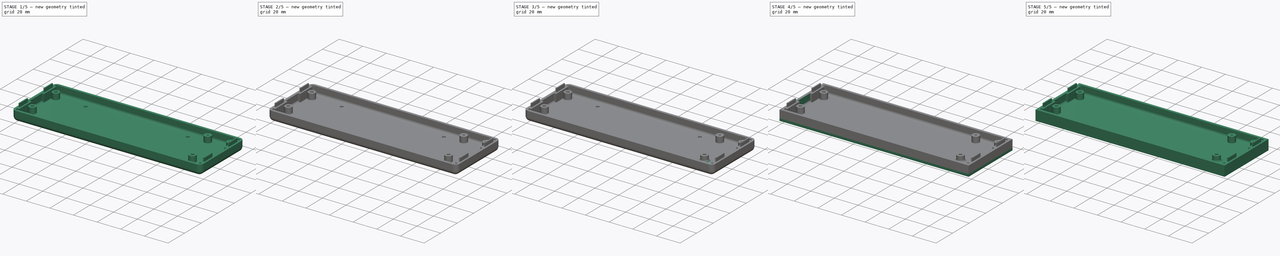
[diagram: build sequence overview — one tinted view per stage of 5, left to right]
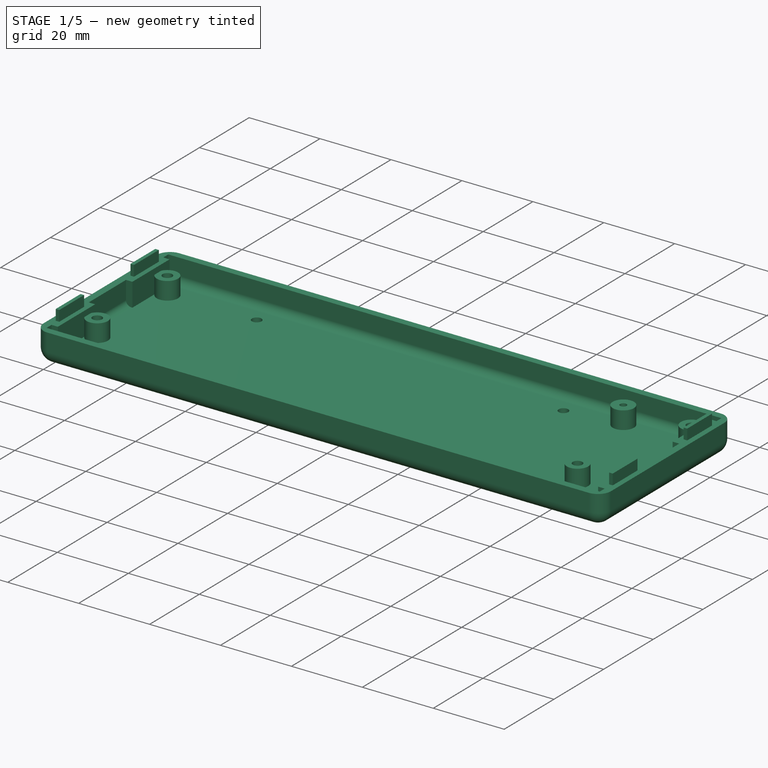
[diagram: stage 1 of 5 — iso view after this stage's code; geometry added in this stage tinted green]
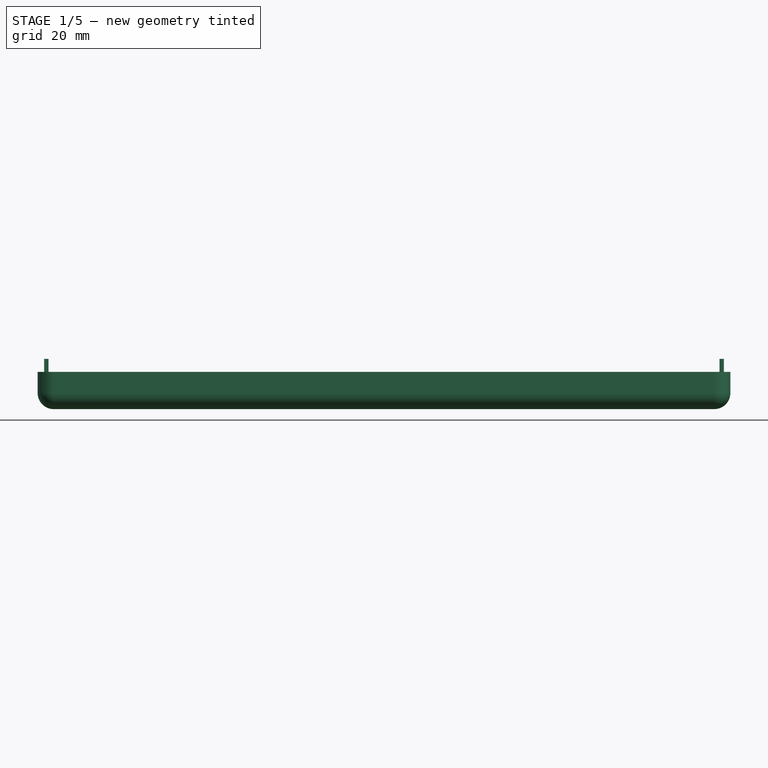
[diagram: stage 1 of 5 — front view after this stage's code; geometry added in this stage tinted green]
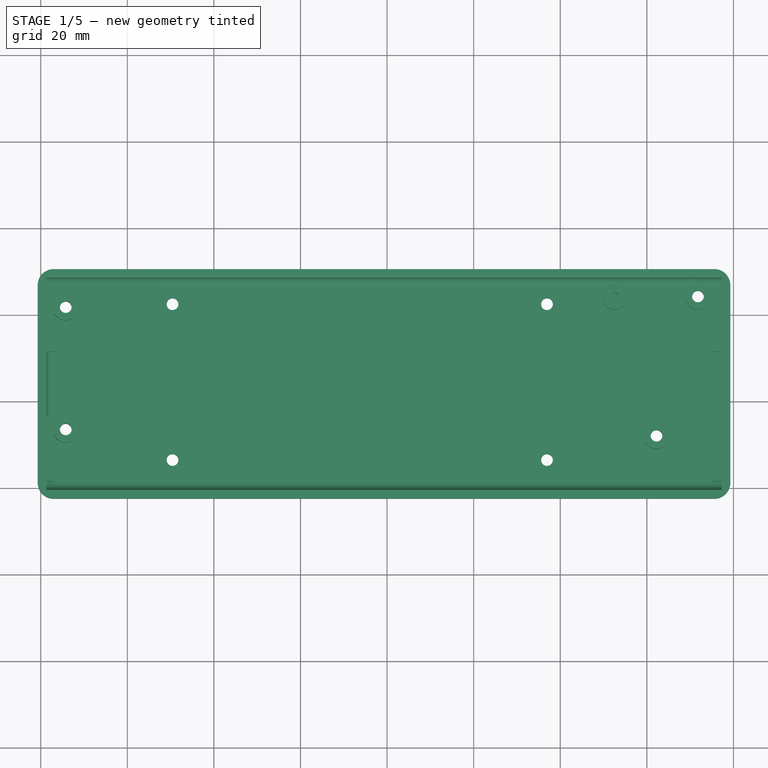
[diagram: stage 1 of 5 — top view after this stage's code; geometry added in this stage tinted green]
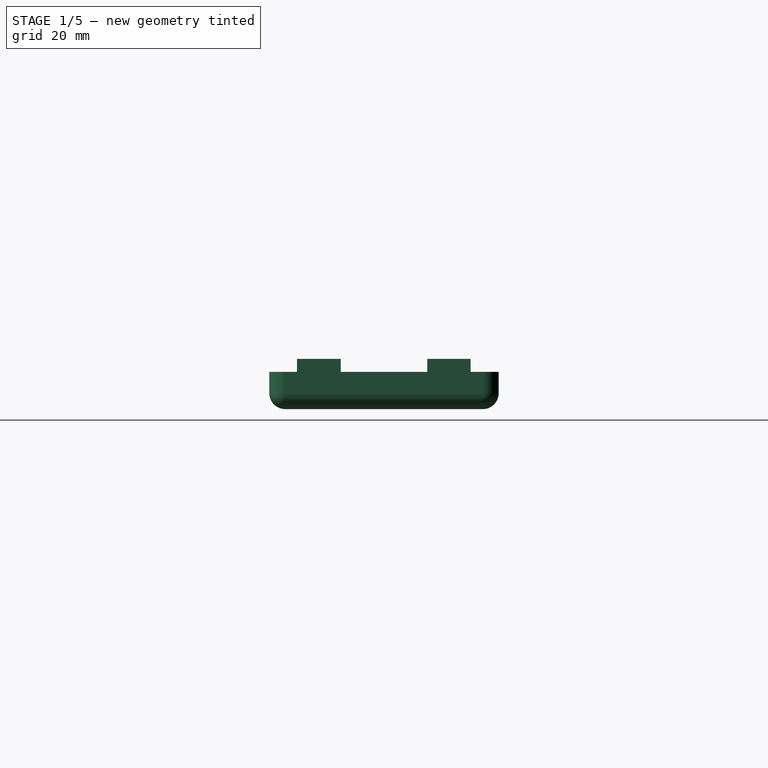
[diagram: stage 1 of 5 — right view after this stage's code; geometry added in this stage tinted green]
FCSTD DOCUMENT  (FreeCAD 0.15R4671 (Git))
Label: bottom_part
License: All rights reserved
LicenseURL: http://en.wikipedia.org/wiki/All_rights_reserved
objects: PartDesign::Fillet×10, Sketcher::SketchObject×8, PartDesign::Pad×5, Part::Feature×3, PartDesign::Pocket×2, PartDesign::Chamfer×1
note: 36 computed .brp shape members not serialized (recipe doc carries the construction recipe); baked Part::Feature solids carry a one-line shape summary decoded from their .brp

FEATURE [Part::Feature] Pocket001001  label="Pocket002"
  shape: bbox 160 x 53 x 11.6 mm, 67 faces (baked)
FEATURE [PartDesign::Fillet] Fillet
  Base = -> Pocket001001 [Edge7,Edge8,Edge52,Edge10,Edge6,Edge2,Edge4,Edge5,Edge51,Edge49,Edge50]
  Radius = 3.7
FEATURE [PartDesign::Fillet] Fillet001
  Base = -> Fillet [Edge119]
  Radius = 2
FEATURE [PartDesign::Fillet] Fillet002
  Base = -> Fillet001 [Edge75]
  Radius = 2
FEATURE [PartDesign::Fillet] Fillet003
  Base = -> Fillet002 [Edge17]
  Radius = 1.5
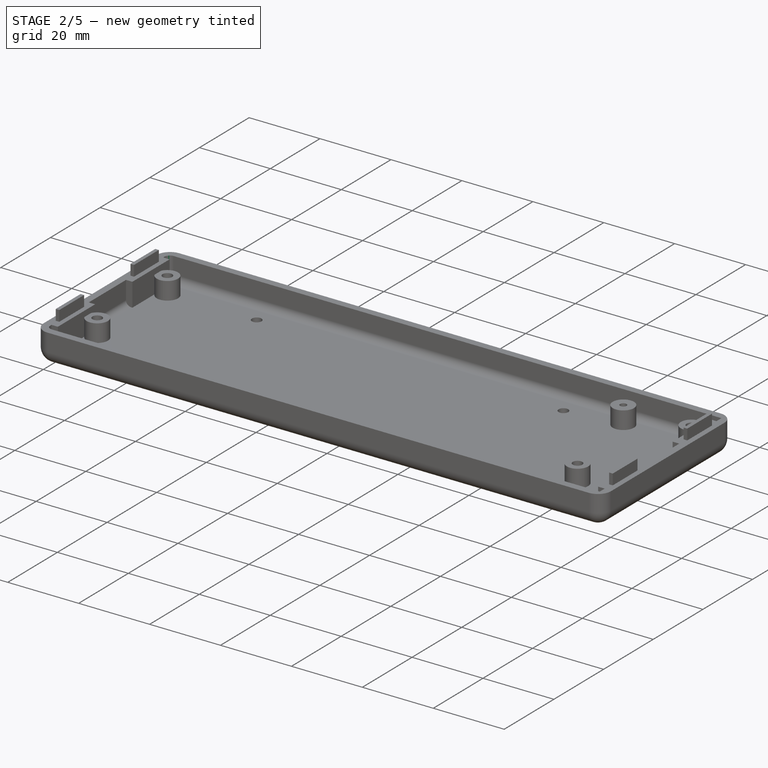
[diagram: stage 2 of 5 — iso view after this stage's code; geometry added in this stage tinted green]
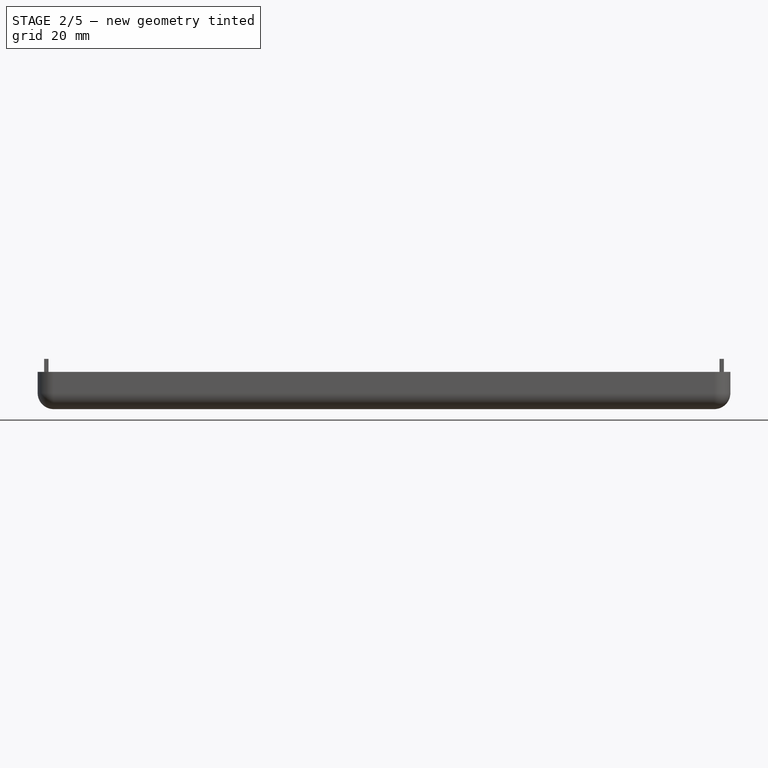
[diagram: stage 2 of 5 — front view after this stage's code; geometry added in this stage tinted green]
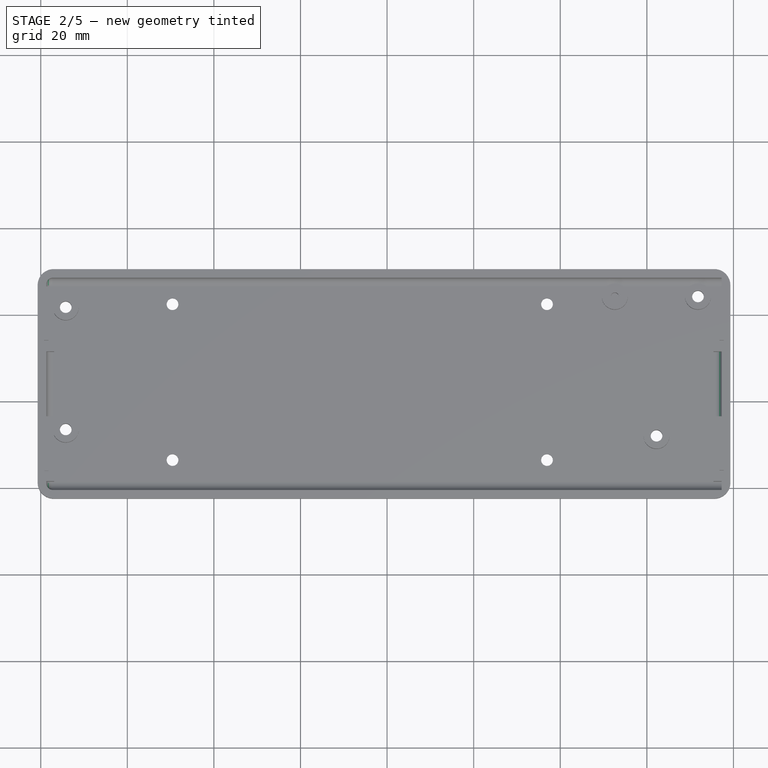
[diagram: stage 2 of 5 — top view after this stage's code; geometry added in this stage tinted green]
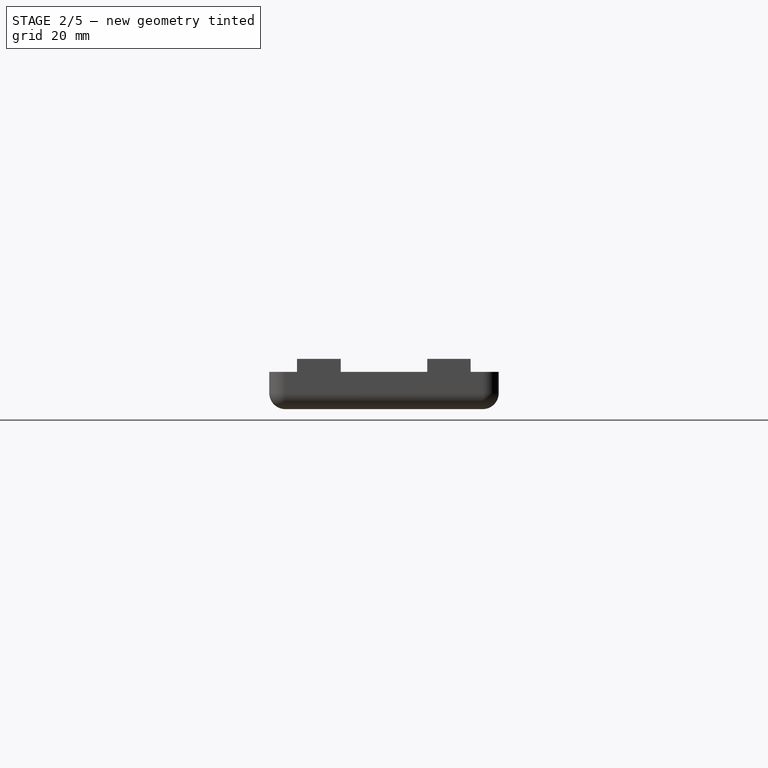
[diagram: stage 2 of 5 — right view after this stage's code; geometry added in this stage tinted green]
FEATURE [PartDesign::Fillet] Fillet004
  Base = -> Fillet003 [Edge63]
  Radius = 1.5
FEATURE [PartDesign::Fillet] Fillet005
  Base = -> Fillet004 [Edge110]
  Radius = 1.5
FEATURE [PartDesign::Fillet] Fillet006
  Base = -> Fillet005 [Edge89]
  Radius = 1.5
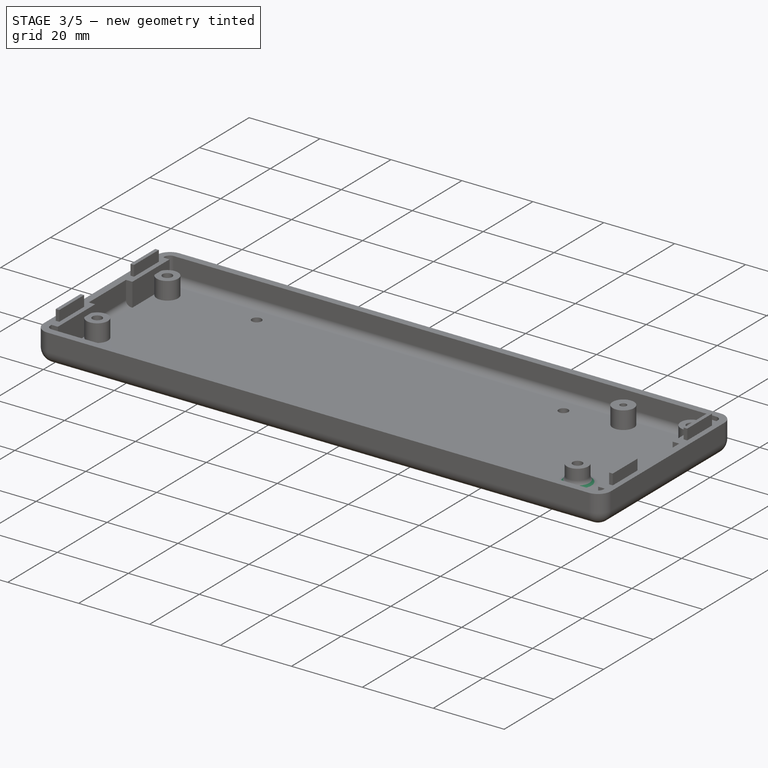
[diagram: stage 3 of 5 — iso view after this stage's code; geometry added in this stage tinted green]
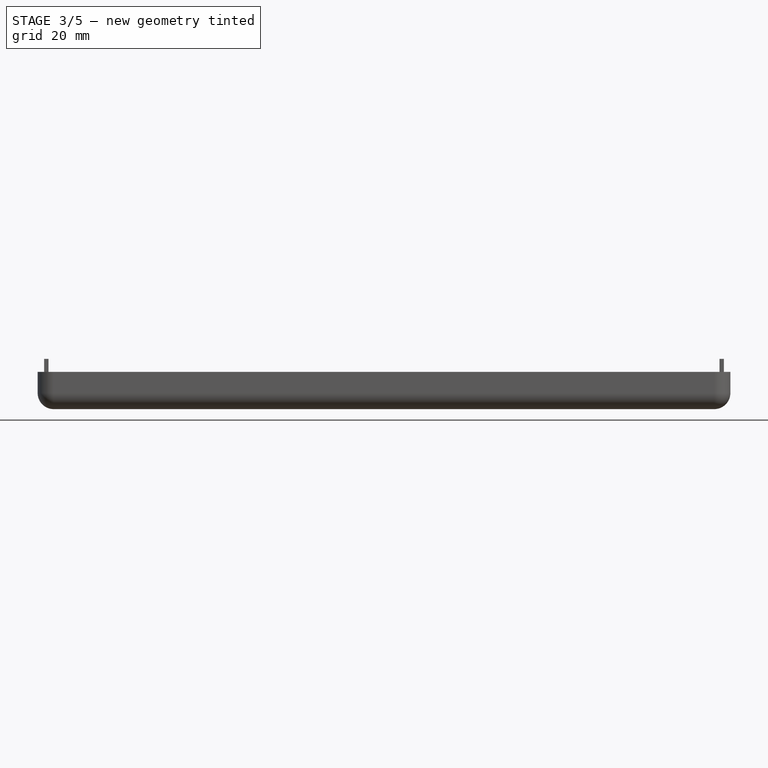
[diagram: stage 3 of 5 — front view after this stage's code; geometry added in this stage tinted green]
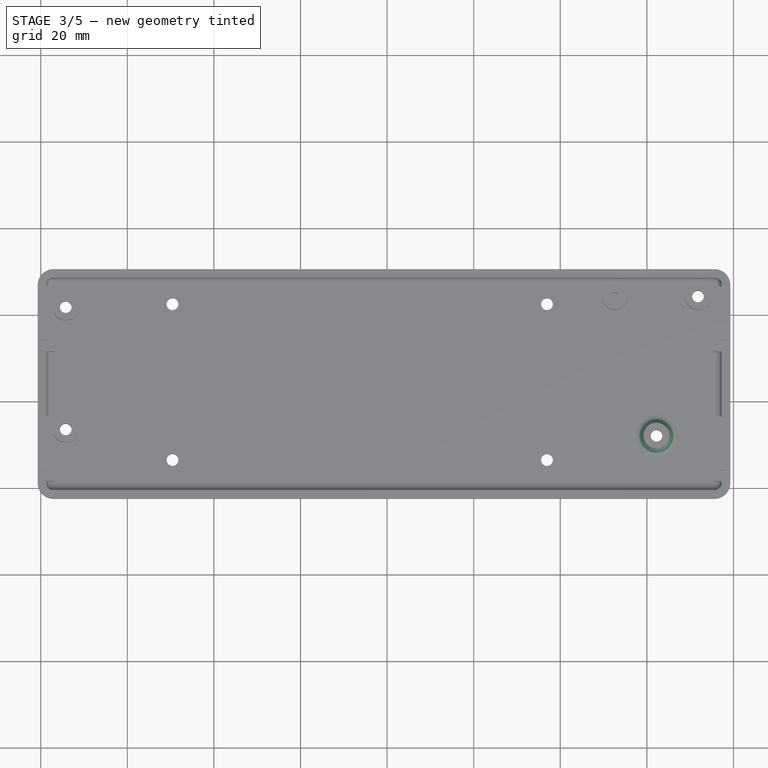
[diagram: stage 3 of 5 — top view after this stage's code; geometry added in this stage tinted green]
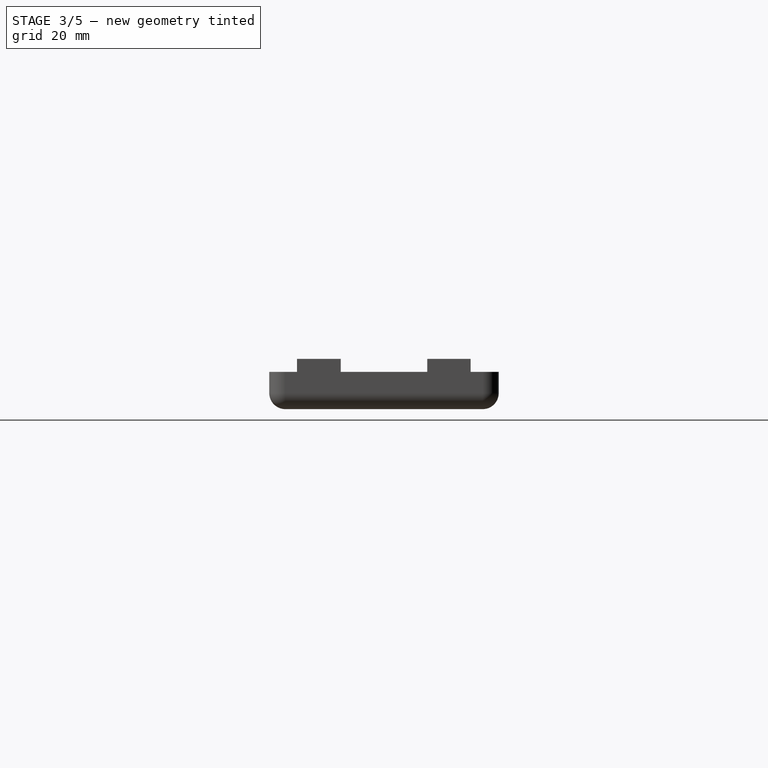
[diagram: stage 3 of 5 — right view after this stage's code; geometry added in this stage tinted green]
FEATURE [PartDesign::Fillet] Fillet007
  Base = -> Fillet006 [Edge103]
  Radius = 1.5
FEATURE [PartDesign::Fillet] Fillet008
  Base = -> Fillet007 [Edge107]
  Radius = 1.5
FEATURE [PartDesign::Fillet] Fillet009
  Base = -> Fillet008 [Edge185]
  Radius = 2
FEATURE [PartDesign::Chamfer] Chamfer
  Base = -> Fillet009 [Edge170,Edge95,Edge97,Edge171,Edge91,Edge93,Edge172,Edge173]
  Size = 0.7
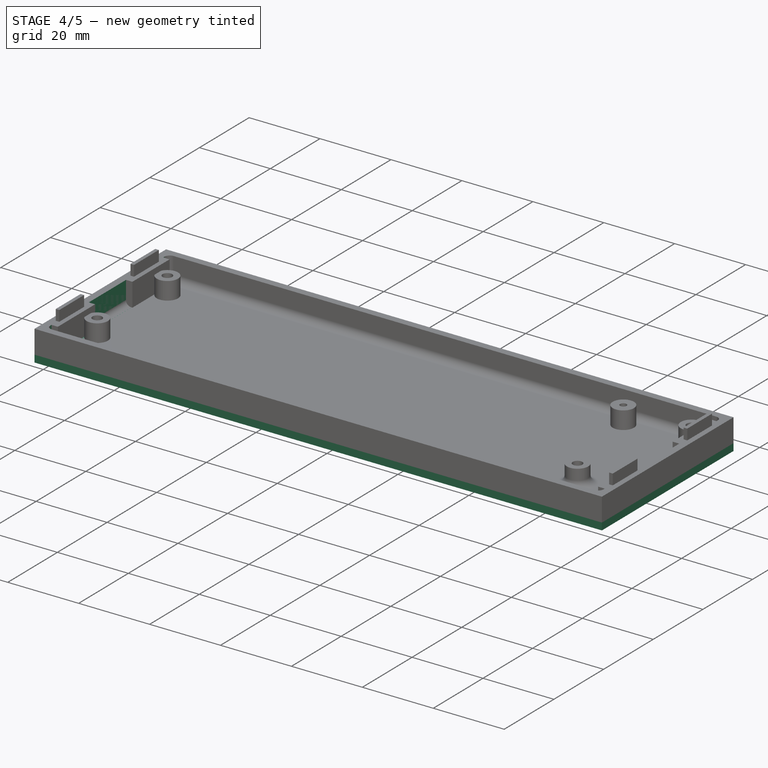
[diagram: stage 4 of 5 — iso view after this stage's code; geometry added in this stage tinted green]
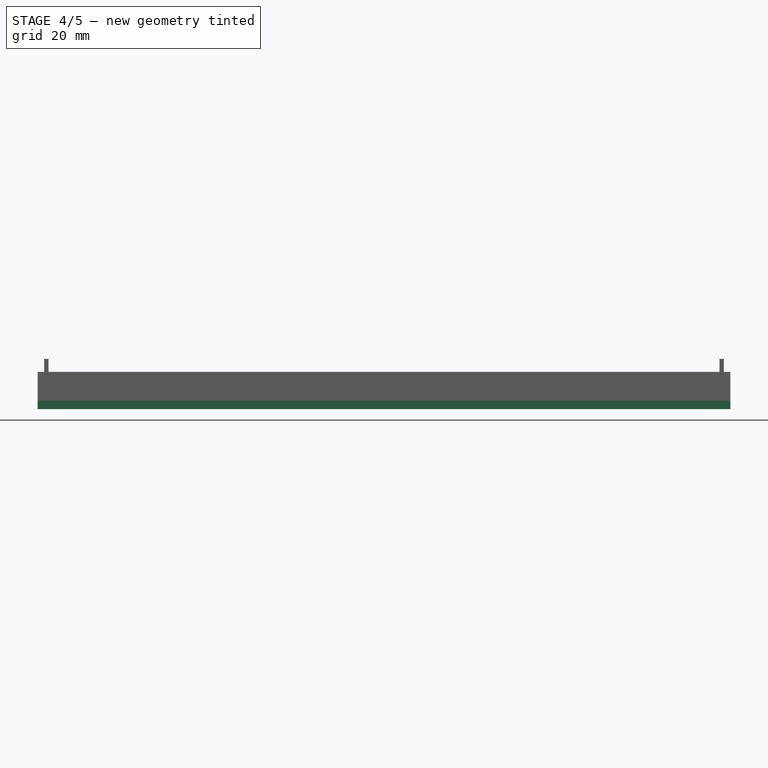
[diagram: stage 4 of 5 — front view after this stage's code; geometry added in this stage tinted green]
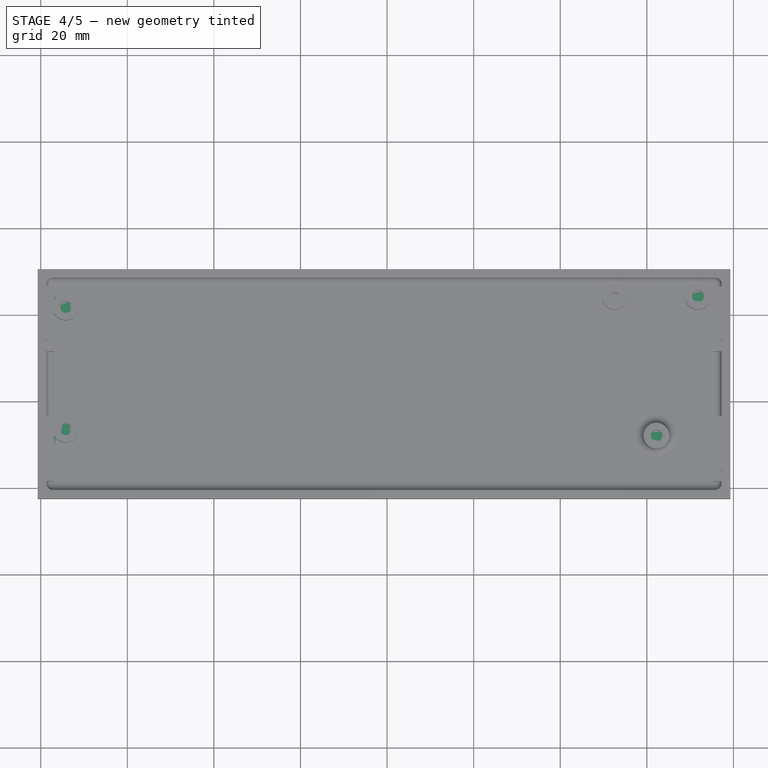
[diagram: stage 4 of 5 — top view after this stage's code; geometry added in this stage tinted green]
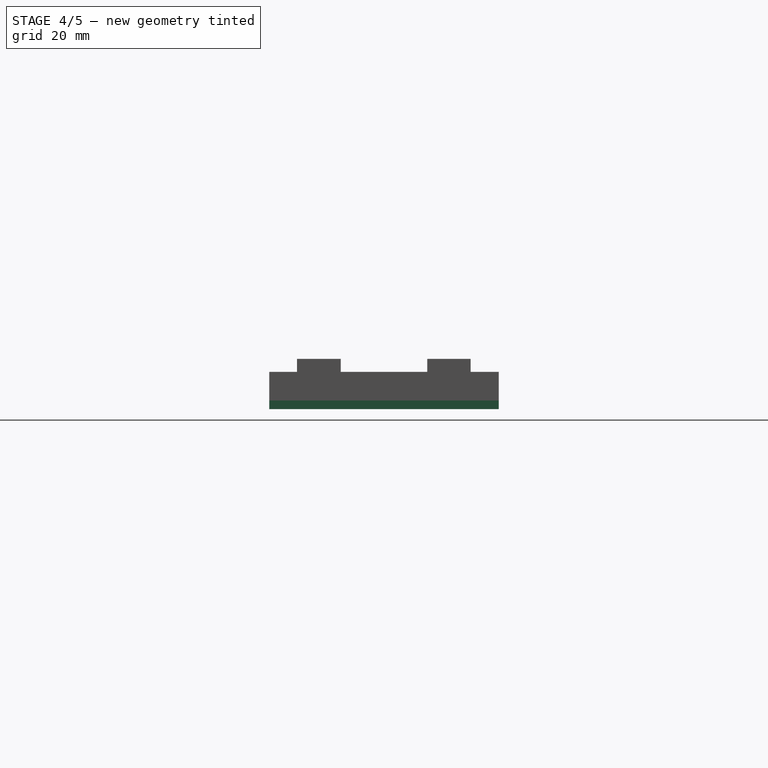
[diagram: stage 4 of 5 — right view after this stage's code; geometry added in this stage tinted green]
FEATURE [Part::Feature] Pad001001  label="Pad002"
  shape: bbox 160 x 53 x 8.6 mm, 11 faces (baked)
FEATURE [Sketcher::SketchObject] Sketch001
  ExternalGeometry = -> [Pad001001]
  Placement = pos=(0,0,2) rot=(0,0,1;0rad)
  Support = -> Pad001001 [Face6]
  sketch-geometry (8):
    g0: Circle CenterX=62.2377 CenterY=-27.9719 CenterZ=0 NormalX=0 NormalY=0 NormalZ=1 Radius=1.35
    g1: Circle CenterX=62.2377 CenterY=-27.9719 CenterZ=0 NormalX=0 NormalY=0 NormalZ=1 Radius=3
    g2: Circle CenterX=71.8077 CenterY=4.20806 CenterZ=0 NormalX=0 NormalY=0 NormalZ=1 Radius=1.35
    g3: Circle CenterX=71.8077 CenterY=4.20806 CenterZ=0 NormalX=0 NormalY=0 NormalZ=1 Radius=3
    g4: Circle CenterX=-74.2223 CenterY=-26.5119 CenterZ=0 NormalX=0 NormalY=0 NormalZ=1 Radius=1.35
    g5: Circle CenterX=-74.2223 CenterY=-26.5119 CenterZ=0 NormalX=0 NormalY=0 NormalZ=1 Radius=3
    g6: Circle CenterX=-74.2223 CenterY=1.73806 CenterZ=0 NormalX=0 NormalY=0 NormalZ=1 Radius=1.35
    g7: Circle CenterX=-74.2223 CenterY=1.73806 CenterZ=0 NormalX=0 NormalY=0 NormalZ=1 Radius=3
  constraints (20):
    c: Radius(g0) = 1.35
    c: Coincident(g1,g0)
    c: Radius(g1) = 3
    c: DistanceX(g2,g-4) = 7.48
    c: DistanceY(g2,g-4) = 6.275
    c: Radius(g2) = 1.35
    c: Coincident(g3,g2)
    c: Radius(g3) = 3
    c: DistanceX(g4,g-6) = -6.49
    c: DistanceY(g-6,g4) = 16.005
    c: Radius(g4) = 1.35
    c: Coincident(g5,g4)
    c: Radius(g5) = 3
    c: DistanceX(g6,g-6) = -6.49
    c: DistanceY(g6,g-6) = 8.745
    c: Radius(g6) = 1.35
    c: Coincident(g7,g6)
    c: Radius(g7) = 3
    c: DistanceY(g2,g0) = -32.18
    c: DistanceX(g0,g2) = 9.57
FEATURE [PartDesign::Pad] Pad001002
  Length = 5
  Length2 = 100
  Sketch = -> Sketch001
  Type = 0
FEATURE [Part::Feature] Pad001004001  label="Pad001005"
  shape: bbox 160 x 53 x 8.6 mm, 43 faces (baked)
FEATURE [Sketcher::SketchObject] Sketch005
  Placement = pos=(0,0,8.6) rot=(0,0,1;0rad)
  Support = -> Pad001004001 [Face6]
FEATURE [Sketcher::SketchObject] Sketch006
  ExternalGeometry = -> [Pad001004001]
  Placement = pos=(0,0,8.6) rot=(0,0,1;0rad)
  Support = -> Pad001004001 [Face6]
  sketch-geometry (16):
    g0: LineSegment StartX=-79.2123 StartY=3.98306 StartZ=0 EndX=-78.2123 EndY=3.98306 EndZ=0
    g1: LineSegment StartX=-78.2123 StartY=3.98306 StartZ=0 EndX=-78.2123 EndY=-6.01694 EndZ=0
    g2: LineSegment StartX=-78.2123 StartY=-6.01694 StartZ=0 EndX=-79.2123 EndY=-6.01694 EndZ=0
    g3: LineSegment StartX=-79.2123 StartY=-6.01694 StartZ=0 EndX=-79.2123 EndY=3.98306 EndZ=0
    g4: LineSegment StartX=-79.2123 StartY=-26.1169 StartZ=0 EndX=-78.2123 EndY=-26.1169 EndZ=0
    g5: LineSegment StartX=-78.2123 StartY=-26.1169 StartZ=0 EndX=-78.2123 EndY=-36.1169 EndZ=0
    g6: LineSegment StartX=-78.2123 StartY=-36.1169 StartZ=0 EndX=-79.2123 EndY=-36.1169 EndZ=0
    g7: LineSegment StartX=-79.2123 StartY=-36.1169 StartZ=0 EndX=-79.2123 EndY=-26.1169 EndZ=0
    g8: LineSegment StartX=76.7877 StartY=3.98306 StartZ=0 EndX=77.7877 EndY=3.98306 EndZ=0
    g9: LineSegment StartX=77.7877 StartY=3.98306 StartZ=0 EndX=77.7877 EndY=-6.01694 EndZ=0
    g10: LineSegment StartX=77.7877 StartY=-6.01694 StartZ=0 EndX=76.7877 EndY=-6.01694 EndZ=0
    g11: LineSegment StartX=76.7877 StartY=-6.01694 StartZ=0 EndX=76.7877 EndY=3.98306 EndZ=0
    g12: LineSegment StartX=76.7877 StartY=-26.0169 StartZ=0 EndX=77.7877 EndY=-26.0169 EndZ=0
    g13: LineSegment StartX=77.7877 StartY=-26.0169 StartZ=0 EndX=77.7877 EndY=-36.0169 EndZ=0
    g14: LineSegment StartX=77.7877 StartY=-36.0169 StartZ=0 EndX=76.7877 EndY=-36.0169 EndZ=0
    g15: LineSegment StartX=76.7877 StartY=-36.0169 StartZ=0 EndX=76.7877 EndY=-26.0169 EndZ=0
  constraints (48):
    c: Coincident(g0,g1)
    c: Coincident(g1,g2)
    c: Coincident(g2,g3)
    c: Coincident(g3,g0)
    c: Horizontal(g0)
    c: Horizontal(g2)
    c: Vertical(g1)
    c: Vertical(g3)
    c: Distance(g0) = 1
    c: DistanceY(g1) = -10
    c: DistanceX(g1,g-5) = -0.5
    c: DistanceY(g1,g-5) = -2.5
    c: Coincident(g4,g5)
    c: Coincident(g5,g6)
    c: Coincident(g6,g7)
    c: Coincident(g7,g4)
    c: Horizontal(g4)
    c: Horizontal(g6)
    c: Vertical(g5)
    c: Vertical(g7)
    c: DistanceX(g4) = 1
    c: Distance(g5) = 10
    c: DistanceX(g5,g-8) = -0.5
    c: DistanceY(g5,g-8) = -2.4
    c: Coincident(g8,g9)
    c: Coincident(g9,g10)
    c: Coincident(g10,g11)
    c: Coincident(g11,g8)
    c: Horizontal(g8)
    c: Horizontal(g10)
    c: Vertical(g9)
    c: Vertical(g11)
    c: DistanceX(g8) = 1
    c: Distance(g11) = 10
    c: DistanceX(g10,g-11) = 0.5
    c: DistanceY(g9,g-11) = -2.5
    c: Coincident(g12,g13)
    c: Coincident(g13,g14)
    c: Coincident(g14,g15)
    c: Coincident(g15,g12)
    c: Horizontal(g12)
    c: Horizontal(g14)
    c: Vertical(g13)
    c: Vertical(g15)
    c: DistanceX(g12) = 1
    c: DistanceY(g13) = -10
    c: DistanceX(g-14,g13) = 0.5
    c: DistanceY(g13,g-14) = -2.5
FEATURE [PartDesign::Pad] Pad001004002
  Length = 3
  Length2 = 100
  Sketch = -> Sketch006
  Type = 0
FEATURE [Sketcher::SketchObject] Sketch007
  ExternalGeometry = -> [Pad001004002]
  Placement = pos=(0,0,2) rot=(0,0,1;0rad)
  Support = -> Pad001004002 [Face48]
  sketch-geometry (4):
    g0: Circle CenterX=-49.5623 CenterY=2.48306 CenterZ=0 NormalX=0 NormalY=0 NormalZ=1 Radius=1.35
    g1: Circle CenterX=36.9377 CenterY=2.48306 CenterZ=0 NormalX=0 NormalY=0 NormalZ=1 Radius=1.35
    g2: Circle CenterX=-49.5623 CenterY=-33.5169 CenterZ=0 NormalX=0 NormalY=0 NormalZ=1 Radius=1.35
    g3: Circle CenterX=36.9377 CenterY=-33.5169 CenterZ=0 NormalX=0 NormalY=0 NormalZ=1 Radius=1.35
  constraints (12):
    c: DistanceX(g1,g0) = -86.5
    c: DistanceY(g1,g0) = 0
    c: DistanceY(g2,g0) = 36
    c: DistanceX(g2,g0) = 0
    c: DistanceY(g3,g1) = 36
    c: DistanceX(g3,g1) = 0
    c: Radius(g3) = 1.35
    c: Radius(g1) = 1.35
    c: Radius(g2) = 1.35
    c: Radius(g0) = 1.35
    c: DistanceX(g-4,g0) = 31.15
    c: DistanceY(g-4,g0) = -8
FEATURE [PartDesign::Pocket] Pocket001
  Length = 4
  Sketch = -> Sketch007
  Type = 0
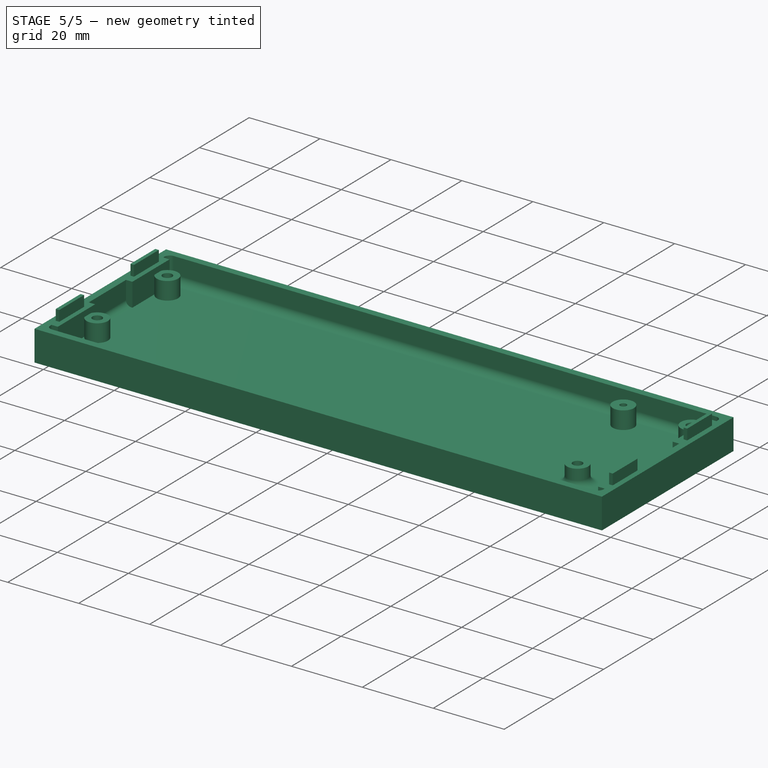
[diagram: stage 5 of 5 — iso view after this stage's code; geometry added in this stage tinted green]
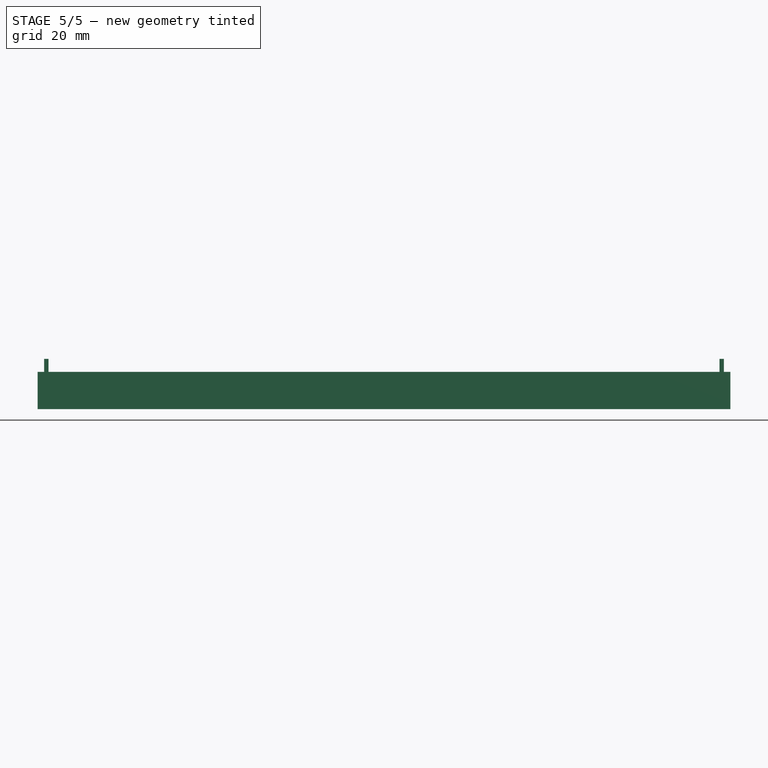
[diagram: stage 5 of 5 — front view after this stage's code; geometry added in this stage tinted green]
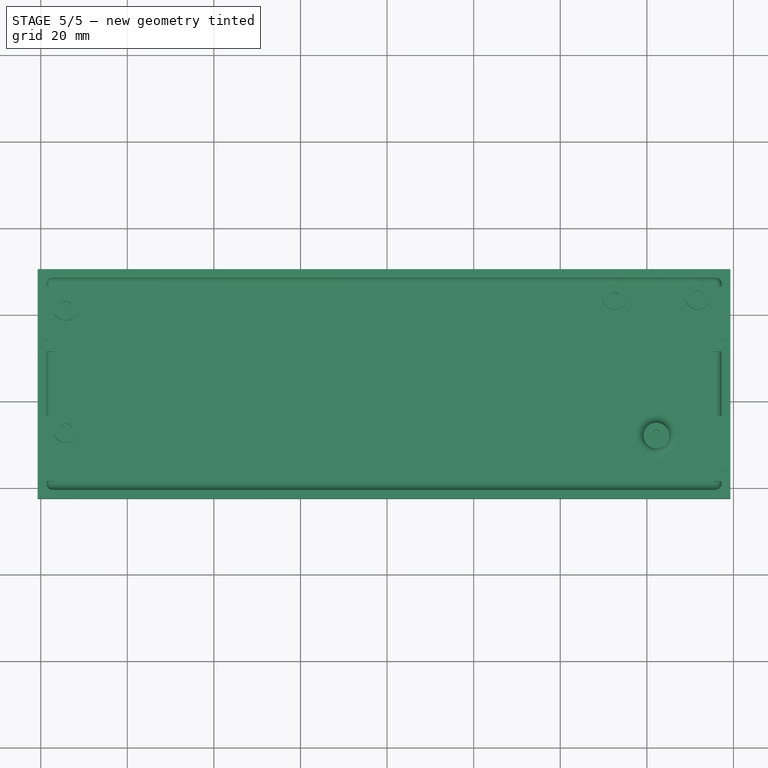
[diagram: stage 5 of 5 — top view after this stage's code; geometry added in this stage tinted green]
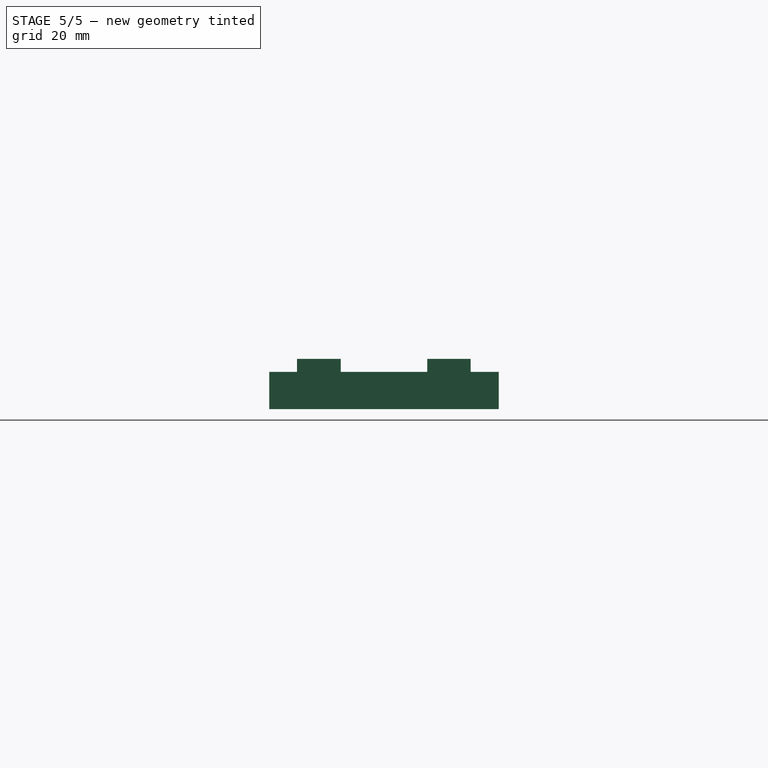
[diagram: stage 5 of 5 — right view after this stage's code; geometry added in this stage tinted green]
FEATURE [Sketcher::SketchObject] Sketch
  sketch-geometry (4):
    g0: LineSegment StartX=-80.7123 StartY=10.4831 StartZ=0 EndX=79.2877 EndY=10.4831 EndZ=0
    g1: LineSegment StartX=79.2877 StartY=10.4831 StartZ=0 EndX=79.2877 EndY=-42.5169 EndZ=0
    g2: LineSegment StartX=79.2877 StartY=-42.5169 StartZ=0 EndX=-80.7123 EndY=-42.5169 EndZ=0
    g3: LineSegment StartX=-80.7123 StartY=-42.5169 StartZ=0 EndX=-80.7123 EndY=10.4831 EndZ=0
  constraints (10):
    c: Coincident(g0,g1)
    c: Coincident(g1,g2)
    c: Coincident(g2,g3)
    c: Coincident(g3,g0)
    c: Horizontal(g0)
    c: Horizontal(g2)
    c: Vertical(g1)
    c: Vertical(g3)
    c: Distance(g0) = 160
    c: Distance(g3) = 53
FEATURE [PartDesign::Pad] Pad
  Length = 2
  Length2 = 100
  Sketch = -> Sketch
  Type = 0
FEATURE [Sketcher::SketchObject] Sketch002
  ExternalGeometry = -> [Pad001002]
  Placement = pos=(0,0,2) rot=(0,0,1;0rad)
  Support = -> Pad001002 [Face11]
  sketch-geometry (2):
    g0: Circle CenterX=52.6077 CenterY=4.20806 CenterZ=0 NormalX=0 NormalY=0 NormalZ=1 Radius=0.9
    g1: Circle CenterX=52.6077 CenterY=4.20806 CenterZ=0 NormalX=0 NormalY=0 NormalZ=1 Radius=3
  constraints (5):
    c: DistanceX(g0,g-3) = 19.2
    c: Radius(g0) = 0.9
    c: Coincident(g1,g0)
    c: Radius(g1) = 3
    c: DistanceY(g-3,g0) = 0
FEATURE [PartDesign::Pad] Pad001003
  Length = 5
  Length2 = 100
  Sketch = -> Sketch002
  Type = 0
FEATURE [Sketcher::SketchObject] Sketch003
  ExternalGeometry = -> [Pad001003]
  Placement = pos=(0,0,2) rot=(0,0,1;0rad)
  Support = -> Pad001003 [Face11]
  sketch-geometry (4):
    g0: Circle CenterX=-74.2223 CenterY=1.73806 CenterZ=0 NormalX=0 NormalY=0 NormalZ=1 Radius=1.35
    g1: Circle CenterX=-74.2223 CenterY=-26.5119 CenterZ=0 NormalX=0 NormalY=0 NormalZ=1 Radius=1.35
    g2: Circle CenterX=62.2377 CenterY=-27.9719 CenterZ=0 NormalX=0 NormalY=0 NormalZ=1 Radius=1.35
    g3: Circle CenterX=71.8077 CenterY=4.20806 CenterZ=0 NormalX=0 NormalY=0 NormalZ=1 Radius=1.35
  constraints (8):
    c: Coincident(g0,g-6)
    c: Radius(g0) = 1.35
    c: Coincident(g1,g-5)
    c: Radius(g1) = 1.35
    c: Coincident(g2,g-4)
    c: Radius(g2) = 1.35
    c: Coincident(g3,g-3)
    c: Radius(g3) = 1.35
FEATURE [PartDesign::Pocket] Pocket
  Length = 5
  Sketch = -> Sketch003
  Type = 1
FEATURE [Sketcher::SketchObject] Sketch004
  ExternalGeometry = -> [Pocket]
  Placement = pos=(0,0,2) rot=(0,0,1;0rad)
  Support = -> Pocket [Face11]
  sketch-geometry (16):
    g0: LineSegment StartX=-76.9223 StartY=6.48306 StartZ=0 EndX=-78.7123 EndY=6.48306 EndZ=0
    g1: LineSegment StartX=-78.7123 StartY=6.48306 StartZ=0 EndX=-78.7123 EndY=-8.51694 EndZ=0
    g2: LineSegment StartX=-78.7123 StartY=-8.51694 StartZ=0 EndX=-76.9223 EndY=-8.51694 EndZ=0
    g3: LineSegment StartX=-76.9223 StartY=-8.51694 StartZ=0 EndX=-76.9223 EndY=6.48306 EndZ=0
    g4: LineSegment StartX=-78.7123 StartY=-23.5169 StartZ=0 EndX=-76.9223 EndY=-23.5169 EndZ=0
    g5: LineSegment StartX=-76.9223 StartY=-23.5169 StartZ=0 EndX=-76.9223 EndY=-38.5169 EndZ=0
    g6: LineSegment StartX=-76.9223 StartY=-38.5169 StartZ=0 EndX=-78.7123 EndY=-38.5169 EndZ=0
    g7: LineSegment StartX=-78.7123 StartY=-38.5169 StartZ=0 EndX=-78.7123 EndY=-23.5169 EndZ=0
    g8: LineSegment StartX=75.4077 StartY=-23.5169 StartZ=0 EndX=77.2877 EndY=-23.5169 EndZ=0
    g9: LineSegment StartX=77.2877 StartY=-23.5169 StartZ=0 EndX=77.2877 EndY=-38.5169 EndZ=0
    g10: LineSegment StartX=77.2877 StartY=-38.5169 StartZ=0 EndX=75.4077 EndY=-38.5169 EndZ=0
    g11: LineSegment StartX=75.4077 StartY=-38.5169 StartZ=0 EndX=75.4077 EndY=-23.5169 EndZ=0
    g12: LineSegment StartX=77.2877 StartY=-8.51694 StartZ=0 EndX=75.4077 EndY=-8.51694 EndZ=0
    g13: LineSegment StartX=75.4077 StartY=-8.51694 StartZ=0 EndX=75.4077 EndY=6.48306 EndZ=0
    g14: LineSegment StartX=75.4077 StartY=6.48306 StartZ=0 EndX=77.2877 EndY=6.48306 EndZ=0
    g15: LineSegment StartX=77.2877 StartY=6.48306 StartZ=0 EndX=77.2877 EndY=-8.51694 EndZ=0
  constraints (48):
    c: Coincident(g0,g1)
    c: Coincident(g1,g2)
    c: Coincident(g2,g3)
    c: Coincident(g3,g0)
    c: Horizontal(g0)
    c: Horizontal(g2)
    c: Vertical(g1)
    c: Vertical(g3)
    c: DistanceY(g-3,g0) = -2
    c: DistanceX(g0,g-3) = 0
    c: Distance(g3) = 15
    c: DistanceX(g2,g-4) = 2.7
    c: Coincident(g4,g5)
    c: Coincident(g5,g6)
    c: Coincident(g6,g7)
    c: Coincident(g7,g4)
    c: Horizontal(g4)
    c: Horizontal(g6)
    c: Vertical(g5)
    c: Vertical(g7)
    c: DistanceY(g6,g-3) = -2
    c: DistanceX(g6,g-3) = 0
    c: DistanceY(g5) = -15
    c: DistanceX(g4,g-5) = 2.7
    c: Coincident(g8,g9)
    c: Coincident(g9,g10)
    c: Coincident(g10,g11)
    c: Coincident(g11,g8)
    c: Horizontal(g8)
    c: Horizontal(g10)
    c: Vertical(g9)
    c: Vertical(g11)
    c: DistanceY(g9,g-6) = -2
    c: Distance(g10) = 1.88
    c: DistanceX(g9,g-6) = 0
    c: Distance(g11) = 15
    c: Coincident(g12,g13)
    c: Coincident(g13,g14)
    c: Coincident(g14,g15)
    c: Coincident(g15,g12)
    c: Horizontal(g12)
    c: Horizontal(g14)
    c: Vertical(g13)
    c: Vertical(g15)
    c: DistanceX(g14,g-6) = 0
    c: DistanceY(g-6,g14) = -2
    c: DistanceY(g13) = 15
    c: DistanceX(g-7,g13) = 3.6
FEATURE [PartDesign::Pad] Pad001004
  Length = 6.6
  Length2 = 100
  Sketch = -> Sketch004
  Type = 0
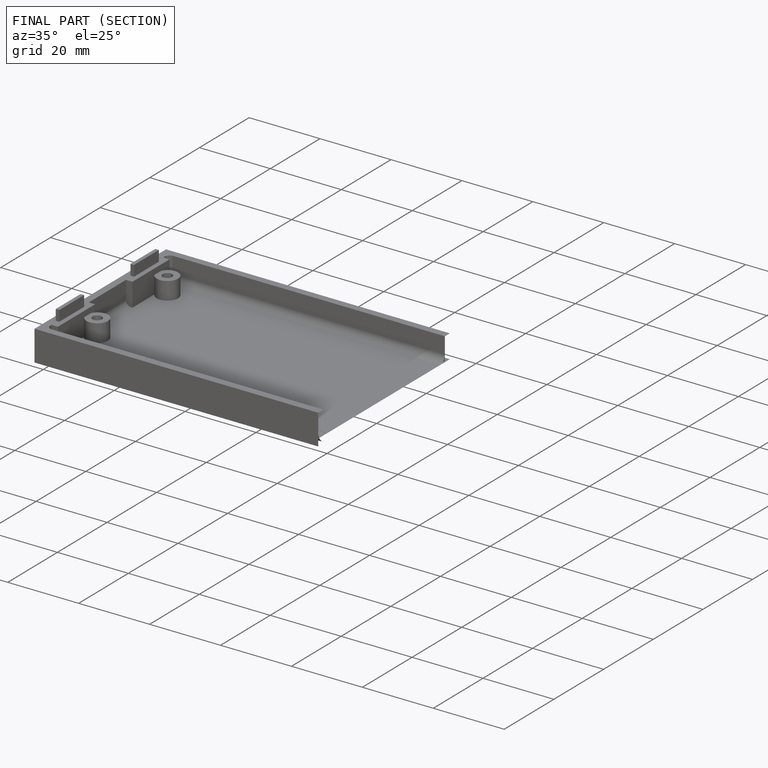
[diagram: finished part — half-section view (interior)]
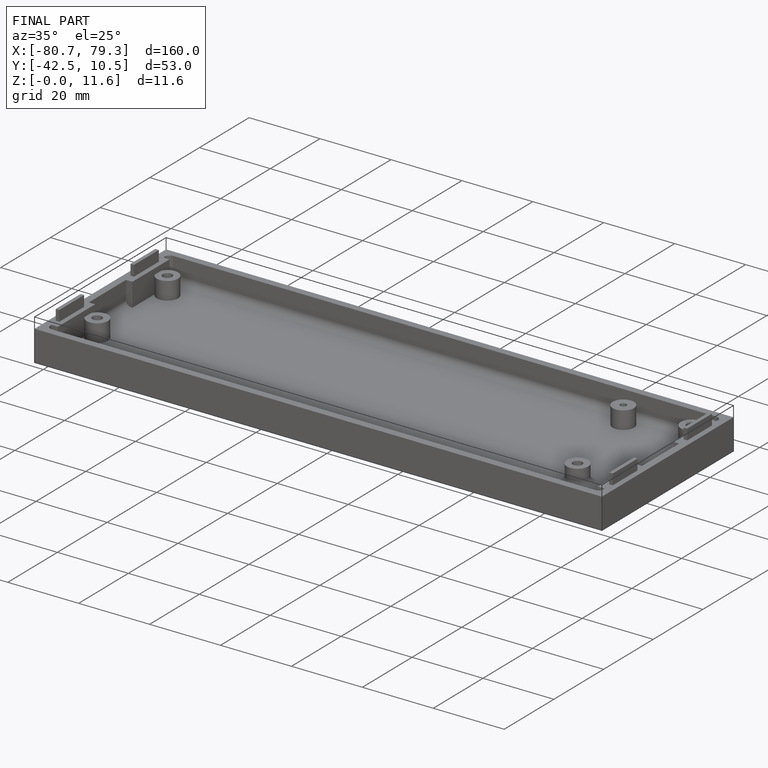
[diagram: finished part — iso view with bounding-box wireframe]
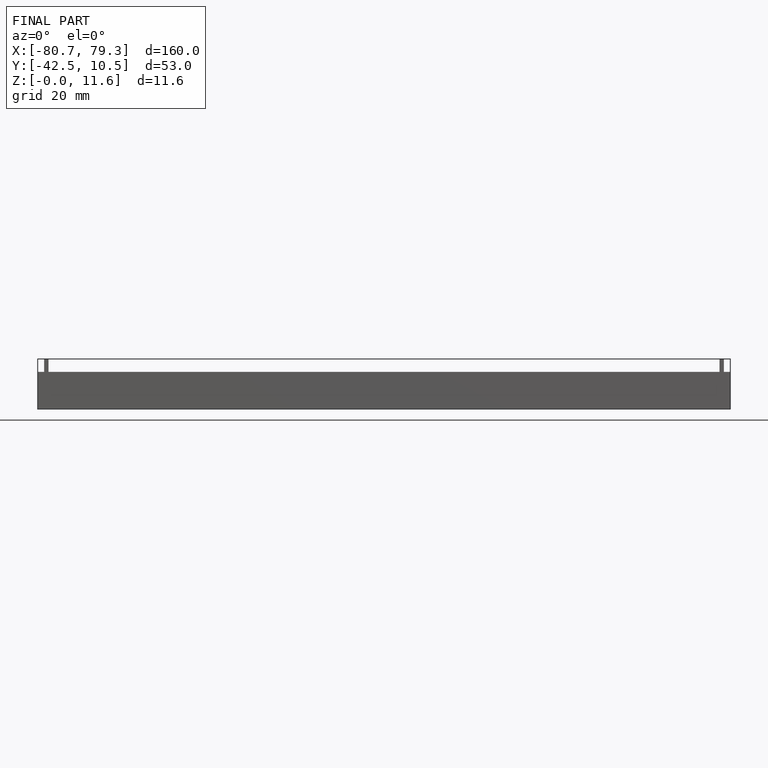
[diagram: finished part — front view with bounding-box wireframe]
